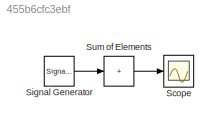
MODEL slx_455b6cfc3ebf
KIND model
CONFIG AbsTol = auto
CONFIG EnableMultiTasking = off
CONFIG FixedStep = auto
CONFIG MaxStep = auto
CONFIG MinStep = auto
CONFIG RelTol = 1e-3
CONFIG SampleTimeConstraint = Unconstrained
CONFIG SolverName = VariableStepAuto
CONFIG StartTime = 0.0
CONFIG StopTime = 2
BLOCK [Scope] Scope
  Floating = off
  NumInputPorts = 1
  ScopeSpecificationString = Simulink.scopes.TimeScopeBlockCfg('CurrentConfiguration', extmgr.ConfigurationSet(extmgr.Configuration('Core','General UI',true),extmgr.Configuration('Core','Source UI',true),extmgr.Configuration('Sources','WiredSimulink',true),extmgr.Configuration('Visuals','Time Domain',true,'SerializedDisplays',{struct('MinYLimReal','-1.24753','MaxYLimReal','1.24753','YLabelReal','','MinYLimMag','0.00000','MaxY...<+1335ch>
BLOCK [SignalGenerator] Signal Generator
  Frequency = omega
  Units = rad/sec
BLOCK [Sum] Sum of Elements
  IconShape = rectangular
  Inputs = +
LINE Signal Generator:1 -> Sum of Elements:1
LINE Sum of Elements:1 -> Scope:1
